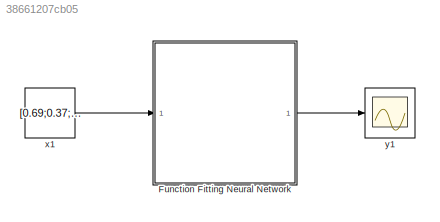
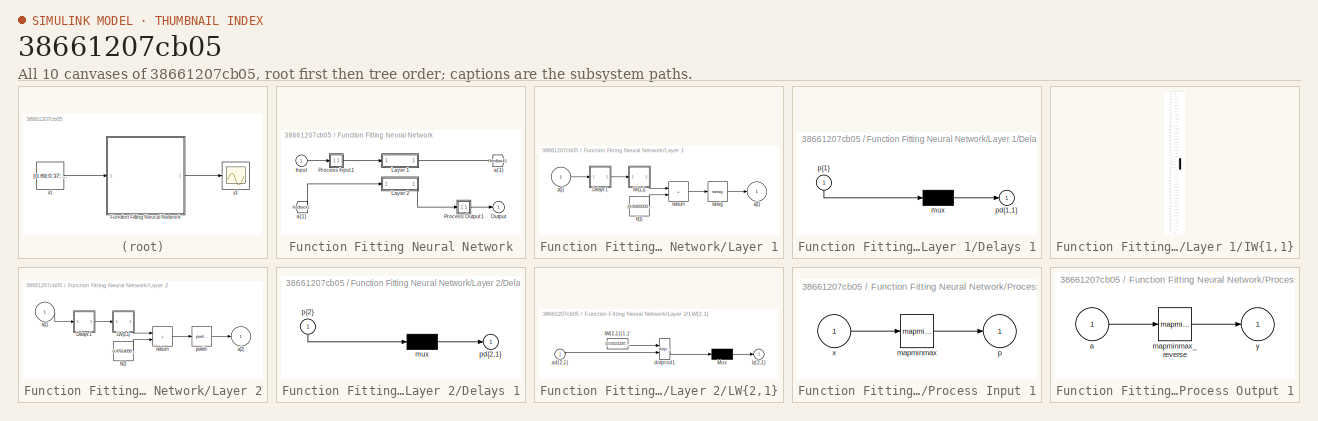
[diagram: thumbnail index - all 10 canvases of the model, root first then tree order]
MODEL slx_38661207cb05
KIND model
CONFIG AbsTol = auto
CONFIG EnableMultiTasking = off
CONFIG FixedStep = auto
CONFIG MaxStep = auto
CONFIG MinStep = auto
CONFIG RelTol = 1e-3
CONFIG SampleTimeConstraint = Unconstrained
CONFIG SolverName = VariableStepAuto
CONFIG StartTime = 0.0
CONFIG StopTime = 10.0
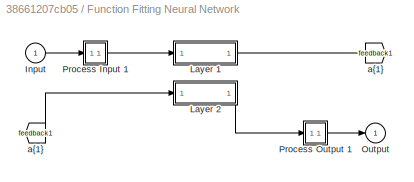
BLOCK [SubSystem] Function Fitting Neural Network
  Ports = [1, 1]
  RequestExecContextInheritance = off
BLOCK [From] Function Fitting Neural Network/ a{1} 
  GotoTag = feedback1
BLOCK [Inport] Function Fitting Neural Network/Input
  PortDimensions = 3
BLOCK [SubSystem] Function Fitting Neural Network/Layer 1
  Ports = [1, 1]
  RequestExecContextInheritance = off
BLOCK [SubSystem] Function Fitting Neural Network/Layer 1/Delays 1
  Ports = [1, 1]
  RequestExecContextInheritance = off
BLOCK [Mux] Function Fitting Neural Network/Layer 1/Delays 1/mux
  Inputs = 1
  Ports = [1, 1]
BLOCK [Outport] Function Fitting Neural Network/Layer 1/Delays 1/pd{1,1}
BLOCK [Inport] Function Fitting Neural Network/Layer 1/Delays 1/p{1}
  NameLocation = left
  PortDimensions = 3
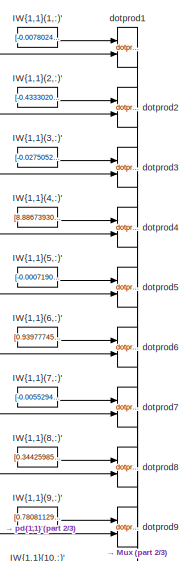
[diagram: Function Fitting Neural Network/Layer 1/IW{1,1} - part 1/3, top center region]
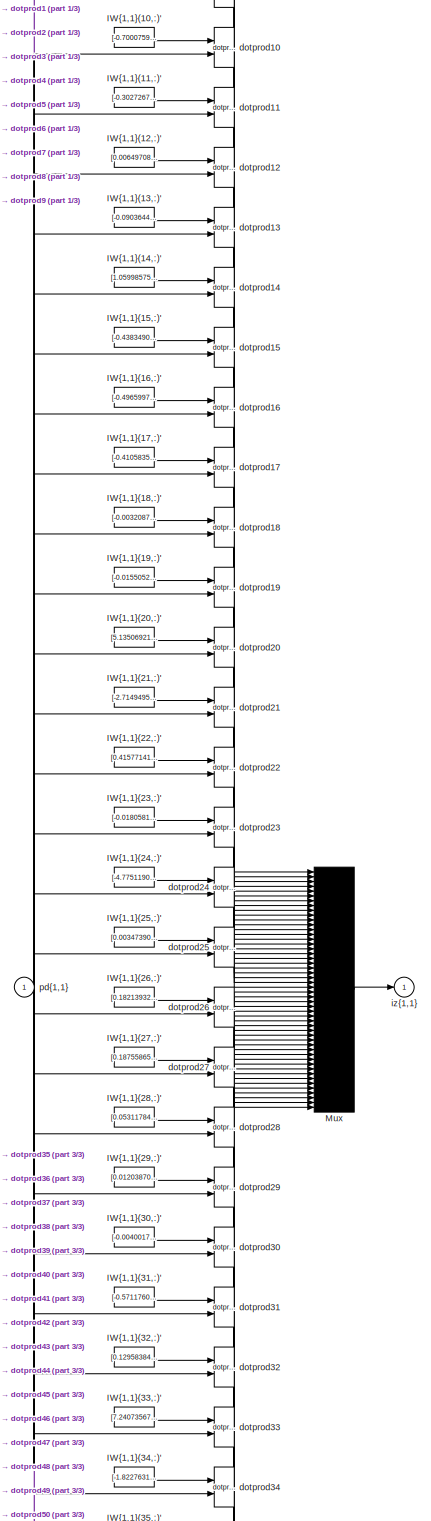
[diagram: Function Fitting Neural Network/Layer 1/IW{1,1} - part 2/3, full width, middle band]
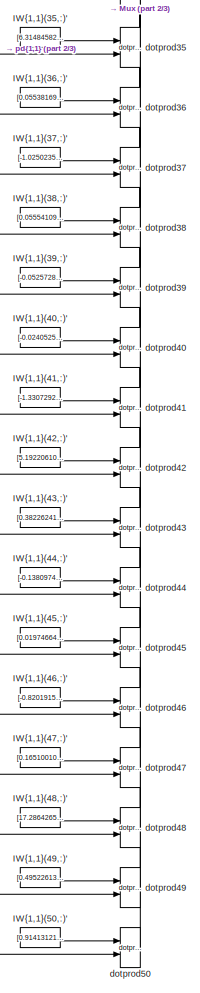
[diagram: Function Fitting Neural Network/Layer 1/IW{1,1} - part 3/3, bottom center region]
BLOCK [SubSystem] Function Fitting Neural Network/Layer 1/IW{1,1}
  Ports = [1, 1]
  RequestExecContextInheritance = off
BLOCK [Constant] Function Fitting Neural Network/Layer 1/IW{1,1}/IW{1,1}(1,:)'
  Value = [-0.007802490652693317395305339090327834128402173519134521484375;0.0245488003842538014820373604152337065897881984710693359375;0.030357218344098622908600049186134128831326961517333984375]
BLOCK [Constant] Function Fitting Neural Network/Layer 1/IW{1,1}/IW{1,1}(10,:)'
  Value = [-0.70007596098265556516793139962828718125820159912109375;-0.27517816440296394286946224383427761495113372802734375;-0.87526685457696007386374503767001442611217498779296875]
BLOCK [Constant] Function Fitting Neural Network/Layer 1/IW{1,1}/IW{1,1}(11,:)'
  Value = [-0.302726740620919254620702076863381080329418182373046875;0.38820127080102706518260902157635428011417388916015625;-0.563495157482501785040085451328195631504058837890625]
BLOCK [Constant] Function Fitting Neural Network/Layer 1/IW{1,1}/IW{1,1}(12,:)'
  Value = [0.00649708988217999328096396993714733980596065521240234375;0.07562323954399914616164579683754709549248218536376953125;0.060269514880412287938238335982532589696347713470458984375]
BLOCK [Constant] Function Fitting Neural Network/Layer 1/IW{1,1}/IW{1,1}(13,:)'
  Value = [-0.0903644362700245784569830220789299346506595611572265625;-5.73156867947949866248791295220144093036651611328125;0.2419626519431356814759936924019712023437023162841796875]
BLOCK [Constant] Function Fitting Neural Network/Layer 1/IW{1,1}/IW{1,1}(14,:)'
  Value = [1.0599857503351362009169633893179707229137420654296875;1.731402156017260995923834343557246029376983642578125;-0.280737149046726031098586418011109344661235809326171875]
BLOCK [Constant] Function Fitting Neural Network/Layer 1/IW{1,1}/IW{1,1}(15,:)'
  Value = [-0.43834908889503176876445422749384306371212005615234375;1.97740516995932313903949761879630386829376220703125;-0.77681071376094923408572867629118263721466064453125]
BLOCK [Constant] Function Fitting Neural Network/Layer 1/IW{1,1}/IW{1,1}(16,:)'
  Value = [-0.4965997558237857933960412992746569216251373291015625;-2.2679912529688550648643285967409610748291015625;-6.7659004497228973917799521586857736110687255859375]
BLOCK [Constant] Function Fitting Neural Network/Layer 1/IW{1,1}/IW{1,1}(17,:)'
  Value = [-0.410583577162490442891140673964400775730609893798828125;-6.5723941087989121712098494754172861576080322265625;-1.90809231326584782806321527459658682346343994140625]
BLOCK [Constant] Function Fitting Neural Network/Layer 1/IW{1,1}/IW{1,1}(18,:)'
  Value = [-0.003208703603492913010442055821158646722324192523956298828125;-0.04365470777054301920738765829810290597379207611083984375;-0.0367744935283312035512182092134025879204273223876953125]
BLOCK [Constant] Function Fitting Neural Network/Layer 1/IW{1,1}/IW{1,1}(19,:)'
  Value = [-0.01550521297797620261238460415142981219105422496795654296875;-0.06837119184355879009107326282901340164244174957275390625;-0.068231348505404632032167455690796487033367156982421875]
BLOCK [Constant] Function Fitting Neural Network/Layer 1/IW{1,1}/IW{1,1}(2,:)'
  Value = [-0.43330205083773842833494427395635284483432769775390625;0.66432607094815743220550530168111436069011688232421875;-0.800356101165105915384856416494585573673248291015625]
BLOCK [Constant] Function Fitting Neural Network/Layer 1/IW{1,1}/IW{1,1}(20,:)'
  Value = [5.13506921622871370658458545221947133541107177734375;-3.20345317283644970274281149613671004772186279296875;2.09269410825132951003979542292654514312744140625]
BLOCK [Constant] Function Fitting Neural Network/Layer 1/IW{1,1}/IW{1,1}(21,:)'
  Value = [-2.71494953536403382798880556947551667690277099609375;-4.97000132058151233849230266059748828411102294921875;9.5646730290126384943505399860441684722900390625]
BLOCK [Constant] Function Fitting Neural Network/Layer 1/IW{1,1}/IW{1,1}(22,:)'
  Value = [0.415771415182131398591280913024093024432659149169921875;0.50180532055194426721556055781547911465167999267578125;-0.1277926225266610427144797768050921149551868438720703125]
BLOCK [Constant] Function Fitting Neural Network/Layer 1/IW{1,1}/IW{1,1}(23,:)'
  Value = [-0.018058136369733544801530200629713363014161586761474609375;0.2069896189264482100345077242309344001114368438720703125;1.062580185369764951275328712654300034046173095703125]
BLOCK [Constant] Function Fitting Neural Network/Layer 1/IW{1,1}/IW{1,1}(24,:)'
  Value = [-4.77511909858266125894488141057081520557403564453125;2.81889025200707710183678500470705330371856689453125;1.2165693290018484429282352721202187240123748779296875]
BLOCK [Constant] Function Fitting Neural Network/Layer 1/IW{1,1}/IW{1,1}(25,:)'
  Value = [0.003473909140344732214555900640107211074791848659515380859375;-0.0167799781232297363919858668168672011233866214752197265625;-0.0184566344126673963221829666281337267719209194183349609375]
BLOCK [Constant] Function Fitting Neural Network/Layer 1/IW{1,1}/IW{1,1}(26,:)'
  Value = [0.1821393294547516139569864890290773473680019378662109375;1.8148913584532968545914854985312558710575103759765625;5.8144232223329250786036936915479600429534912109375]
BLOCK [Constant] Function Fitting Neural Network/Layer 1/IW{1,1}/IW{1,1}(27,:)'
  Value = [0.1875586523835815200289545146006275899708271026611328125;-0.108653105294960694582329097102046944200992584228515625;0.2410189362733214657463776120494003407657146453857421875]
BLOCK [Constant] Function Fitting Neural Network/Layer 1/IW{1,1}/IW{1,1}(28,:)'
  Value = [0.0531178467898652251211188968227361328899860382080078125;0.10075952009397261266432366255685337819159030914306640625;0.09146888142490446071963816621064324863255023956298828125]
BLOCK [Constant] Function Fitting Neural Network/Layer 1/IW{1,1}/IW{1,1}(29,:)'
  Value = [0.01203870065091178741256694451067232876084744930267333984375;0.05249320485636237154647432134879636578261852264404296875;0.06064760424355887524772157348706969060003757476806640625]
BLOCK [Constant] Function Fitting Neural Network/Layer 1/IW{1,1}/IW{1,1}(3,:)'
  Value = [-0.02750523969990399664187208372823079116642475128173828125;-0.08230091428998777269843145631966763176023960113525390625;-0.0463336302393278220979055959105608053505420684814453125]
BLOCK [Constant] Function Fitting Neural Network/Layer 1/IW{1,1}/IW{1,1}(30,:)'
  Value = [-0.004001702697109347887927111031558524700812995433807373046875;-0.0453289186408128708105635951142176054418087005615234375;0.06899957921791981252379599709456670098006725311279296875]
BLOCK [Constant] Function Fitting Neural Network/Layer 1/IW{1,1}/IW{1,1}(31,:)'
  Value = [-0.57117604476147632031057810308993794023990631103515625;-7.9951739619875610287635936401784420013427734375;-2.37229186227722177449095397605560719966888427734375]
BLOCK [Constant] Function Fitting Neural Network/Layer 1/IW{1,1}/IW{1,1}(32,:)'
  Value = [0.1295838419179179135110047127454890869557857513427734375;4.77841076055229496688525614445097744464874267578125;-0.5869683865087507168567526605329476296901702880859375]
BLOCK [Constant] Function Fitting Neural Network/Layer 1/IW{1,1}/IW{1,1}(33,:)'
  Value = [7.240735670974121518383981310762465000152587890625;3.418750659636040634126175064011476933956146240234375;3.442618235906760748576971309375949203968048095703125]
BLOCK [Constant] Function Fitting Neural Network/Layer 1/IW{1,1}/IW{1,1}(34,:)'
  Value = [-1.8227631366632703890928723922115750610828399658203125;-0.50354303058210436727648584565031342208385467529296875;-0.406474752311483999989150106557644903659820556640625]
BLOCK [Constant] Function Fitting Neural Network/Layer 1/IW{1,1}/IW{1,1}(35,:)'
  Value = [6.314845824161494647341896779835224151611328125;2.29056099143789904104551169439218938350677490234375;-2.195757603786627765174443993601016700267791748046875]
BLOCK [Constant] Function Fitting Neural Network/Layer 1/IW{1,1}/IW{1,1}(36,:)'
  Value = [0.05538169092708998542118337127249105833470821380615234375;0.11267711006360119074809489347899216227233409881591796875;0.0894014804725185296963019254690152592957019805908203125]
BLOCK [Constant] Function Fitting Neural Network/Layer 1/IW{1,1}/IW{1,1}(37,:)'
  Value = [-1.02502356350680035035338732996024191379547119140625;-0.422020951403098421028659004150540567934513092041015625;-0.424988717914301095124329776808735914528369903564453125]
BLOCK [Constant] Function Fitting Neural Network/Layer 1/IW{1,1}/IW{1,1}(38,:)'
  Value = [0.0555410978533395771616909541990025900304317474365234375;0.0752976033370312547443603534702560864388942718505859375;0.1035757513549229458238443157824804075062274932861328125]
BLOCK [Constant] Function Fitting Neural Network/Layer 1/IW{1,1}/IW{1,1}(39,:)'
  Value = [-0.05257287900157280036150808655293076299130916595458984375;2.84513727157140028367621198412962257862091064453125;1.0663524426634065633834325126372277736663818359375]
BLOCK [Constant] Function Fitting Neural Network/Layer 1/IW{1,1}/IW{1,1}(4,:)'
  Value = [8.886739301581801697693663300015032291412353515625;-0.52196123725755338984555464776349253952503204345703125;-3.586044978651317105544649166404269635677337646484375]
BLOCK [Constant] Function Fitting Neural Network/Layer 1/IW{1,1}/IW{1,1}(40,:)'
  Value = [-0.02405258392529431576978282691925414837896823883056640625;0.0180044168893227218841701642304542474448680877685546875;0.045973866256405086783143332240797462873160839080810546875]
BLOCK [Constant] Function Fitting Neural Network/Layer 1/IW{1,1}/IW{1,1}(41,:)'
  Value = [-1.33072925947881959274354812805540859699249267578125;-0.908615748291656810664562726742587983608245849609375;-0.043280679048366944849934867534102522768080234527587890625]
BLOCK [Constant] Function Fitting Neural Network/Layer 1/IW{1,1}/IW{1,1}(42,:)'
  Value = [5.19220610156417361480407635099254548549652099609375;-2.61554325724090830362911219708621501922607421875;-0.9090822896435073463550224914797581732273101806640625]
BLOCK [Constant] Function Fitting Neural Network/Layer 1/IW{1,1}/IW{1,1}(43,:)'
  Value = [0.3822624102999034878536122050718404352664947509765625;6.479299956860788967105690971948206424713134765625;1.823409866254550149022861660341732203960418701171875]
BLOCK [Constant] Function Fitting Neural Network/Layer 1/IW{1,1}/IW{1,1}(44,:)'
  Value = [-0.1380974912688738009958200336768641136586666107177734375;0.1869668184638409169640027585046482272446155548095703125;-0.82004388529707206156871279745246283710002899169921875]
BLOCK [Constant] Function Fitting Neural Network/Layer 1/IW{1,1}/IW{1,1}(45,:)'
  Value = [0.01974664882319367154028810773525037802755832672119140625;-0.00112559522827453280767462384659438612288795411586761474609375;-0.0128681378088175736584819475183394388295710086822509765625]
BLOCK [Constant] Function Fitting Neural Network/Layer 1/IW{1,1}/IW{1,1}(46,:)'
  Value = [-0.82019153301345915085818205625400878489017486572265625;-0.64025414941239311428233804690535180270671844482421875;1.754826012589809192121492742444388568401336669921875]
BLOCK [Constant] Function Fitting Neural Network/Layer 1/IW{1,1}/IW{1,1}(47,:)'
  Value = [0.1651001000818258235280922008314519189298152923583984375;0.079318327500708052379962964550941251218318939208984375;0.1805968932791880698918163261623703874647617340087890625]
BLOCK [Constant] Function Fitting Neural Network/Layer 1/IW{1,1}/IW{1,1}(48,:)'
  Value = [17.286426501963351398671875358559191226959228515625;-0.8136195117715525615409433157765306532382965087890625;0.077944525769799322123532192563288845121860504150390625]
BLOCK [Constant] Function Fitting Neural Network/Layer 1/IW{1,1}/IW{1,1}(49,:)'
  Value = [0.49522613662617487317874065411160700023174285888671875;-0.573902306624953784108811305486597120761871337890625;-3.981303720348468022649512931820936501026153564453125]
BLOCK [Constant] Function Fitting Neural Network/Layer 1/IW{1,1}/IW{1,1}(5,:)'
  Value = [-0.000719042008973189085592470082275440290686674416065216064453125;-0.03689982917092581027329600829034461639821529388427734375;-0.03437511404779068635573224810286774300038814544677734375]
BLOCK [Constant] Function Fitting Neural Network/Layer 1/IW{1,1}/IW{1,1}(50,:)'
  Value = [0.91413121054785551056198755759396590292453765869140625;1.9045356315740111785572707958635874092578887939453125;-0.0028836996633447536768357633008008633623830974102020263671875]
BLOCK [Constant] Function Fitting Neural Network/Layer 1/IW{1,1}/IW{1,1}(6,:)'
  Value = [0.93977745604699458592534710987820290029048919677734375;0.159746646883351051116051166900433599948883056640625;-3.397698842639774508000982677913270890712738037109375]
BLOCK [Constant] Function Fitting Neural Network/Layer 1/IW{1,1}/IW{1,1}(7,:)'
  Value = [-0.00552943147538018618669664050457868142984807491302490234375;0.01070047824962312536800634887868000078015029430389404296875;0.0158101044343360308541690528727485798299312591552734375]
BLOCK [Constant] Function Fitting Neural Network/Layer 1/IW{1,1}/IW{1,1}(8,:)'
  Value = [0.344259857556870330075327046870370395481586456298828125;0.057499336311618860773098305116945994086563587188720703125;0.426564706926471526315935989259742200374603271484375]
BLOCK [Constant] Function Fitting Neural Network/Layer 1/IW{1,1}/IW{1,1}(9,:)'
  Value = [0.78081129777451752094208359267213381826877593994140625;-0.51466408692734877394769910097238607704639434814453125;1.2880000492127277045284472478670068085193634033203125]
BLOCK [Mux] Function Fitting Neural Network/Layer 1/IW{1,1}/Mux
  Inputs = 50
  Ports = [50, 1]
BLOCK [Reference] Function Fitting Neural Network/Layer 1/IW{1,1}/dotprod1  REF=neural/Weight Functions/dotprod
  Ports = [2, 1]
  SourceBlock = neural/Weight Functions/dotprod
  SourceProductBaseCode = NN
  SourceType = DOTPROD
BLOCK [Reference] Function Fitting Neural Network/Layer 1/IW{1,1}/dotprod10  REF=neural/Weight Functions/dotprod
  Ports = [2, 1]
  SourceBlock = neural/Weight Functions/dotprod
  SourceProductBaseCode = NN
  SourceType = DOTPROD
BLOCK [Reference] Function Fitting Neural Network/Layer 1/IW{1,1}/dotprod11  REF=neural/Weight Functions/dotprod
  Ports = [2, 1]
  SourceBlock = neural/Weight Functions/dotprod
  SourceProductBaseCode = NN
  SourceType = DOTPROD
BLOCK [Reference] Function Fitting Neural Network/Layer 1/IW{1,1}/dotprod12  REF=neural/Weight Functions/dotprod
  Ports = [2, 1]
  SourceBlock = neural/Weight Functions/dotprod
  SourceProductBaseCode = NN
  SourceType = DOTPROD
BLOCK [Reference] Function Fitting Neural Network/Layer 1/IW{1,1}/dotprod13  REF=neural/Weight Functions/dotprod
  Ports = [2, 1]
  SourceBlock = neural/Weight Functions/dotprod
  SourceProductBaseCode = NN
  SourceType = DOTPROD
BLOCK [Reference] Function Fitting Neural Network/Layer 1/IW{1,1}/dotprod14  REF=neural/Weight Functions/dotprod
  Ports = [2, 1]
  SourceBlock = neural/Weight Functions/dotprod
  SourceProductBaseCode = NN
  SourceType = DOTPROD
BLOCK [Reference] Function Fitting Neural Network/Layer 1/IW{1,1}/dotprod15  REF=neural/Weight Functions/dotprod
  Ports = [2, 1]
  SourceBlock = neural/Weight Functions/dotprod
  SourceProductBaseCode = NN
  SourceType = DOTPROD
BLOCK [Reference] Function Fitting Neural Network/Layer 1/IW{1,1}/dotprod16  REF=neural/Weight Functions/dotprod
  Ports = [2, 1]
  SourceBlock = neural/Weight Functions/dotprod
  SourceProductBaseCode = NN
  SourceType = DOTPROD
BLOCK [Reference] Function Fitting Neural Network/Layer 1/IW{1,1}/dotprod17  REF=neural/Weight Functions/dotprod
  Ports = [2, 1]
  SourceBlock = neural/Weight Functions/dotprod
  SourceProductBaseCode = NN
  SourceType = DOTPROD
BLOCK [Reference] Function Fitting Neural Network/Layer 1/IW{1,1}/dotprod18  REF=neural/Weight Functions/dotprod
  Ports = [2, 1]
  SourceBlock = neural/Weight Functions/dotprod
  SourceProductBaseCode = NN
  SourceType = DOTPROD
BLOCK [Reference] Function Fitting Neural Network/Layer 1/IW{1,1}/dotprod19  REF=neural/Weight Functions/dotprod
  Ports = [2, 1]
  SourceBlock = neural/Weight Functions/dotprod
  SourceProductBaseCode = NN
  SourceType = DOTPROD
BLOCK [Reference] Function Fitting Neural Network/Layer 1/IW{1,1}/dotprod2  REF=neural/Weight Functions/dotprod
  Ports = [2, 1]
  SourceBlock = neural/Weight Functions/dotprod
  SourceProductBaseCode = NN
  SourceType = DOTPROD
BLOCK [Reference] Function Fitting Neural Network/Layer 1/IW{1,1}/dotprod20  REF=neural/Weight Functions/dotprod
  Ports = [2, 1]
  SourceBlock = neural/Weight Functions/dotprod
  SourceProductBaseCode = NN
  SourceType = DOTPROD
BLOCK [Reference] Function Fitting Neural Network/Layer 1/IW{1,1}/dotprod21  REF=neural/Weight Functions/dotprod
  Ports = [2, 1]
  SourceBlock = neural/Weight Functions/dotprod
  SourceProductBaseCode = NN
  SourceType = DOTPROD
BLOCK [Reference] Function Fitting Neural Network/Layer 1/IW{1,1}/dotprod22  REF=neural/Weight Functions/dotprod
  Ports = [2, 1]
  SourceBlock = neural/Weight Functions/dotprod
  SourceProductBaseCode = NN
  SourceType = DOTPROD
BLOCK [Reference] Function Fitting Neural Network/Layer 1/IW{1,1}/dotprod23  REF=neural/Weight Functions/dotprod
  Ports = [2, 1]
  SourceBlock = neural/Weight Functions/dotprod
  SourceProductBaseCode = NN
  SourceType = DOTPROD
BLOCK [Reference] Function Fitting Neural Network/Layer 1/IW{1,1}/dotprod24  REF=neural/Weight Functions/dotprod
  Ports = [2, 1]
  SourceBlock = neural/Weight Functions/dotprod
  SourceProductBaseCode = NN
  SourceType = DOTPROD
BLOCK [Reference] Function Fitting Neural Network/Layer 1/IW{1,1}/dotprod25  REF=neural/Weight Functions/dotprod
  Ports = [2, 1]
  SourceBlock = neural/Weight Functions/dotprod
  SourceProductBaseCode = NN
  SourceType = DOTPROD
BLOCK [Reference] Function Fitting Neural Network/Layer 1/IW{1,1}/dotprod26  REF=neural/Weight Functions/dotprod
  Ports = [2, 1]
  SourceBlock = neural/Weight Functions/dotprod
  SourceProductBaseCode = NN
  SourceType = DOTPROD
BLOCK [Reference] Function Fitting Neural Network/Layer 1/IW{1,1}/dotprod27  REF=neural/Weight Functions/dotprod
  Ports = [2, 1]
  SourceBlock = neural/Weight Functions/dotprod
  SourceProductBaseCode = NN
  SourceType = DOTPROD
BLOCK [Reference] Function Fitting Neural Network/Layer 1/IW{1,1}/dotprod28  REF=neural/Weight Functions/dotprod
  Ports = [2, 1]
  SourceBlock = neural/Weight Functions/dotprod
  SourceProductBaseCode = NN
  SourceType = DOTPROD
BLOCK [Reference] Function Fitting Neural Network/Layer 1/IW{1,1}/dotprod29  REF=neural/Weight Functions/dotprod
  Ports = [2, 1]
  SourceBlock = neural/Weight Functions/dotprod
  SourceProductBaseCode = NN
  SourceType = DOTPROD
BLOCK [Reference] Function Fitting Neural Network/Layer 1/IW{1,1}/dotprod3  REF=neural/Weight Functions/dotprod
  Ports = [2, 1]
  SourceBlock = neural/Weight Functions/dotprod
  SourceProductBaseCode = NN
  SourceType = DOTPROD
BLOCK [Reference] Function Fitting Neural Network/Layer 1/IW{1,1}/dotprod30  REF=neural/Weight Functions/dotprod
  Ports = [2, 1]
  SourceBlock = neural/Weight Functions/dotprod
  SourceProductBaseCode = NN
  SourceType = DOTPROD
BLOCK [Reference] Function Fitting Neural Network/Layer 1/IW{1,1}/dotprod31  REF=neural/Weight Functions/dotprod
  Ports = [2, 1]
  SourceBlock = neural/Weight Functions/dotprod
  SourceProductBaseCode = NN
  SourceType = DOTPROD
BLOCK [Reference] Function Fitting Neural Network/Layer 1/IW{1,1}/dotprod32  REF=neural/Weight Functions/dotprod
  Ports = [2, 1]
  SourceBlock = neural/Weight Functions/dotprod
  SourceProductBaseCode = NN
  SourceType = DOTPROD
BLOCK [Reference] Function Fitting Neural Network/Layer 1/IW{1,1}/dotprod33  REF=neural/Weight Functions/dotprod
  Ports = [2, 1]
  SourceBlock = neural/Weight Functions/dotprod
  SourceProductBaseCode = NN
  SourceType = DOTPROD
BLOCK [Reference] Function Fitting Neural Network/Layer 1/IW{1,1}/dotprod34  REF=neural/Weight Functions/dotprod
  Ports = [2, 1]
  SourceBlock = neural/Weight Functions/dotprod
  SourceProductBaseCode = NN
  SourceType = DOTPROD
BLOCK [Reference] Function Fitting Neural Network/Layer 1/IW{1,1}/dotprod35  REF=neural/Weight Functions/dotprod
  Ports = [2, 1]
  SourceBlock = neural/Weight Functions/dotprod
  SourceProductBaseCode = NN
  SourceType = DOTPROD
BLOCK [Reference] Function Fitting Neural Network/Layer 1/IW{1,1}/dotprod36  REF=neural/Weight Functions/dotprod
  Ports = [2, 1]
  SourceBlock = neural/Weight Functions/dotprod
  SourceProductBaseCode = NN
  SourceType = DOTPROD
BLOCK [Reference] Function Fitting Neural Network/Layer 1/IW{1,1}/dotprod37  REF=neural/Weight Functions/dotprod
  Ports = [2, 1]
  SourceBlock = neural/Weight Functions/dotprod
  SourceProductBaseCode = NN
  SourceType = DOTPROD
BLOCK [Reference] Function Fitting Neural Network/Layer 1/IW{1,1}/dotprod38  REF=neural/Weight Functions/dotprod
  Ports = [2, 1]
  SourceBlock = neural/Weight Functions/dotprod
  SourceProductBaseCode = NN
  SourceType = DOTPROD
BLOCK [Reference] Function Fitting Neural Network/Layer 1/IW{1,1}/dotprod39  REF=neural/Weight Functions/dotprod
  Ports = [2, 1]
  SourceBlock = neural/Weight Functions/dotprod
  SourceProductBaseCode = NN
  SourceType = DOTPROD
BLOCK [Reference] Function Fitting Neural Network/Layer 1/IW{1,1}/dotprod4  REF=neural/Weight Functions/dotprod
  Ports = [2, 1]
  SourceBlock = neural/Weight Functions/dotprod
  SourceProductBaseCode = NN
  SourceType = DOTPROD
BLOCK [Reference] Function Fitting Neural Network/Layer 1/IW{1,1}/dotprod40  REF=neural/Weight Functions/dotprod
  Ports = [2, 1]
  SourceBlock = neural/Weight Functions/dotprod
  SourceProductBaseCode = NN
  SourceType = DOTPROD
BLOCK [Reference] Function Fitting Neural Network/Layer 1/IW{1,1}/dotprod41  REF=neural/Weight Functions/dotprod
  Ports = [2, 1]
  SourceBlock = neural/Weight Functions/dotprod
  SourceProductBaseCode = NN
  SourceType = DOTPROD
BLOCK [Reference] Function Fitting Neural Network/Layer 1/IW{1,1}/dotprod42  REF=neural/Weight Functions/dotprod
  Ports = [2, 1]
  SourceBlock = neural/Weight Functions/dotprod
  SourceProductBaseCode = NN
  SourceType = DOTPROD
BLOCK [Reference] Function Fitting Neural Network/Layer 1/IW{1,1}/dotprod43  REF=neural/Weight Functions/dotprod
  Ports = [2, 1]
  SourceBlock = neural/Weight Functions/dotprod
  SourceProductBaseCode = NN
  SourceType = DOTPROD
BLOCK [Reference] Function Fitting Neural Network/Layer 1/IW{1,1}/dotprod44  REF=neural/Weight Functions/dotprod
  Ports = [2, 1]
  SourceBlock = neural/Weight Functions/dotprod
  SourceProductBaseCode = NN
  SourceType = DOTPROD
BLOCK [Reference] Function Fitting Neural Network/Layer 1/IW{1,1}/dotprod45  REF=neural/Weight Functions/dotprod
  Ports = [2, 1]
  SourceBlock = neural/Weight Functions/dotprod
  SourceProductBaseCode = NN
  SourceType = DOTPROD
BLOCK [Reference] Function Fitting Neural Network/Layer 1/IW{1,1}/dotprod46  REF=neural/Weight Functions/dotprod
  Ports = [2, 1]
  SourceBlock = neural/Weight Functions/dotprod
  SourceProductBaseCode = NN
  SourceType = DOTPROD
BLOCK [Reference] Function Fitting Neural Network/Layer 1/IW{1,1}/dotprod47  REF=neural/Weight Functions/dotprod
  Ports = [2, 1]
  SourceBlock = neural/Weight Functions/dotprod
  SourceProductBaseCode = NN
  SourceType = DOTPROD
BLOCK [Reference] Function Fitting Neural Network/Layer 1/IW{1,1}/dotprod48  REF=neural/Weight Functions/dotprod
  Ports = [2, 1]
  SourceBlock = neural/Weight Functions/dotprod
  SourceProductBaseCode = NN
  SourceType = DOTPROD
BLOCK [Reference] Function Fitting Neural Network/Layer 1/IW{1,1}/dotprod49  REF=neural/Weight Functions/dotprod
  Ports = [2, 1]
  SourceBlock = neural/Weight Functions/dotprod
  SourceProductBaseCode = NN
  SourceType = DOTPROD
BLOCK [Reference] Function Fitting Neural Network/Layer 1/IW{1,1}/dotprod5  REF=neural/Weight Functions/dotprod
  Ports = [2, 1]
  SourceBlock = neural/Weight Functions/dotprod
  SourceProductBaseCode = NN
  SourceType = DOTPROD
BLOCK [Reference] Function Fitting Neural Network/Layer 1/IW{1,1}/dotprod50  REF=neural/Weight Functions/dotprod
  Ports = [2, 1]
  SourceBlock = neural/Weight Functions/dotprod
  SourceProductBaseCode = NN
  SourceType = DOTPROD
BLOCK [Reference] Function Fitting Neural Network/Layer 1/IW{1,1}/dotprod6  REF=neural/Weight Functions/dotprod
  Ports = [2, 1]
  SourceBlock = neural/Weight Functions/dotprod
  SourceProductBaseCode = NN
  SourceType = DOTPROD
BLOCK [Reference] Function Fitting Neural Network/Layer 1/IW{1,1}/dotprod7  REF=neural/Weight Functions/dotprod
  Ports = [2, 1]
  SourceBlock = neural/Weight Functions/dotprod
  SourceProductBaseCode = NN
  SourceType = DOTPROD
BLOCK [Reference] Function Fitting Neural Network/Layer 1/IW{1,1}/dotprod8  REF=neural/Weight Functions/dotprod
  Ports = [2, 1]
  SourceBlock = neural/Weight Functions/dotprod
  SourceProductBaseCode = NN
  SourceType = DOTPROD
BLOCK [Reference] Function Fitting Neural Network/Layer 1/IW{1,1}/dotprod9  REF=neural/Weight Functions/dotprod
  Ports = [2, 1]
  SourceBlock = neural/Weight Functions/dotprod
  SourceProductBaseCode = NN
  SourceType = DOTPROD
BLOCK [Outport] Function Fitting Neural Network/Layer 1/IW{1,1}/iz{1,1}
BLOCK [Inport] Function Fitting Neural Network/Layer 1/IW{1,1}/pd{1,1}
  PortDimensions = 3
BLOCK [Outport] Function Fitting Neural Network/Layer 1/a{1}
  InitialOutput = [0;0;0;0;0;0;0;0;0;0;0;0;0;0;0;0;0;0;0;0;0;0;0;0;0;0;0;0;0;0;0;0;0;0;0;0;0;0;0;0;0;0;0;0;0;0;0;0;0;0]
BLOCK [Constant] Function Fitting Neural Network/Layer 1/b{1}
  Value = [0.0160303394414940646173217686509815393947064876556396484375;0.9362317116184104559550860358285717666149139404296875;0.025650908390924272162170183264606748707592487335205078125;0.7483227937497167747693538331077434122562408447265625;0.00207214091261132514476539512315866886638104915618896484375;-0.53462680867430145692509313448681496083736419677734375;0.01116701925462889287421486272933179861865937709...<+2490ch>
BLOCK [Sum] Function Fitting Neural Network/Layer 1/netsum
  IconShape = rectangular
  InputSameDT = on
  Inputs = 2
  OutDataTypeStr = Inherit: Same as first input
  Ports = [2, 1]
  SaturateOnIntegerOverflow = on
BLOCK [Inport] Function Fitting Neural Network/Layer 1/p{1}
  PortDimensions = 3
BLOCK [Reference] Function Fitting Neural Network/Layer 1/tansig  REF=neural/Transfer Functions/tansig
  Ports = [1, 1]
  SourceBlock = neural/Transfer Functions/tansig
  SourceProductBaseCode = NN
  SourceType = TANSIG
BLOCK [SubSystem] Function Fitting Neural Network/Layer 2
  Ports = [1, 1]
  RequestExecContextInheritance = off
BLOCK [SubSystem] Function Fitting Neural Network/Layer 2/Delays 1
  Ports = [1, 1]
  RequestExecContextInheritance = off
BLOCK [Mux] Function Fitting Neural Network/Layer 2/Delays 1/mux
  Inputs = 1
  Ports = [1, 1]
BLOCK [Outport] Function Fitting Neural Network/Layer 2/Delays 1/pd{2,1}
BLOCK [Inport] Function Fitting Neural Network/Layer 2/Delays 1/p{2}
  NameLocation = left
  PortDimensions = 50
BLOCK [SubSystem] Function Fitting Neural Network/Layer 2/LW{2,1}
  Ports = [1, 1]
  RequestExecContextInheritance = off
BLOCK [Constant] Function Fitting Neural Network/Layer 2/LW{2,1}/IW{2,1}(1,:)'
  Value = [0.0310149739781787718573280443479234236292541027069091796875;-0.7282140724239483109414550199289806187152862548828125;-0.09835210260311606778049764443494495935738086700439453125;-0.032828508309874215864709867673809640109539031982421875;-0.047480391102315978868464441120522678829729557037353515625;0.1431674278844967951318523091686074621975421905517578125;0.0137703448365299723626931083231283992063254...<+2454ch>
BLOCK [Mux] Function Fitting Neural Network/Layer 2/LW{2,1}/Mux
  Inputs = 1
  Ports = [1, 1]
BLOCK [Inport] Function Fitting Neural Network/Layer 2/LW{2,1}/ad{2,1}
  PortDimensions = 50
BLOCK [Reference] Function Fitting Neural Network/Layer 2/LW{2,1}/dotprod1  REF=neural/Weight Functions/dotprod
  Ports = [2, 1]
  SourceBlock = neural/Weight Functions/dotprod
  SourceProductBaseCode = NN
  SourceType = DOTPROD
BLOCK [Outport] Function Fitting Neural Network/Layer 2/LW{2,1}/lz{2,1}
BLOCK [Inport] Function Fitting Neural Network/Layer 2/a{1} 
  PortDimensions = 50
BLOCK [Outport] Function Fitting Neural Network/Layer 2/a{2}
  InitialOutput = 0
BLOCK [Constant] Function Fitting Neural Network/Layer 2/b{2}
  Value = -0.476140991721615114418142411523149348795413970947265625
BLOCK [Sum] Function Fitting Neural Network/Layer 2/netsum
  IconShape = rectangular
  InputSameDT = on
  Inputs = 2
  OutDataTypeStr = Inherit: Same as first input
  Ports = [2, 1]
  SaturateOnIntegerOverflow = on
BLOCK [Reference] Function Fitting Neural Network/Layer 2/purelin  REF=neural/Transfer Functions/purelin
  Ports = [1, 1]
  SourceBlock = neural/Transfer Functions/purelin
  SourceProductBaseCode = NN
  SourceType = PURELIN
BLOCK [Outport] Function Fitting Neural Network/Output
  InitialOutput = 0
BLOCK [SubSystem] Function Fitting Neural Network/Process Input 1
  Ports = [1, 1]
  RequestExecContextInheritance = off
BLOCK [Reference] Function Fitting Neural Network/Process Input 1/mapminmax  REF=neural/Processing Functions/mapminmax
  Ports = [1, 1]
  SourceBlock = neural/Processing Functions/mapminmax
  SourceProductBaseCode = NN
  SourceType = MAPMINMAX Preprocess
BLOCK [Outport] Function Fitting Neural Network/Process Input 1/p
  PortDimensions = 3
BLOCK [Inport] Function Fitting Neural Network/Process Input 1/x
  PortDimensions = 3
BLOCK [SubSystem] Function Fitting Neural Network/Process Output 1
  Ports = [1, 1]
  RequestExecContextInheritance = off
BLOCK [Inport] Function Fitting Neural Network/Process Output 1/a
  PortDimensions = 1
BLOCK [Reference] Function Fitting Neural Network/Process Output 1/mapminmax_reverse  REF=neural/Processing Functions/mapminmax_reverse
  Ports = [1, 1]
  SourceBlock = neural/Processing Functions/mapminmax_reverse
  SourceProductBaseCode = NN
  SourceType = MAPMINMAX Reverse Process
BLOCK [Outport] Function Fitting Neural Network/Process Output 1/y
  PortDimensions = 1
BLOCK [Goto] Function Fitting Neural Network/a{1}
  GotoTag = feedback1
BLOCK [Constant] x1
  SampleTime = 1
  Value = [0.69;0.37;0.71]
BLOCK [Scope] y1
  Floating = off
  NumInputPorts = 1
  Ports = [1]
LINE Function Fitting Neural Network/ a{1} :1 -> Function Fitting Neural Network/Layer 2:1
LINE Function Fitting Neural Network/Input:1 -> Function Fitting Neural Network/Process Input 1:1
LINE Function Fitting Neural Network/Layer 1/Delays 1/mux:1 -> Function Fitting Neural Network/Layer 1/Delays 1/pd{1,1}:1
LINE Function Fitting Neural Network/Layer 1/Delays 1/p{1}:1 -> Function Fitting Neural Network/Layer 1/Delays 1/mux:1
LINE Function Fitting Neural Network/Layer 1/Delays 1:1 -> Function Fitting Neural Network/Layer 1/IW{1,1}:1
LINE Function Fitting Neural Network/Layer 1/IW{1,1}/IW{1,1}(1,:)':1 -> Function Fitting Neural Network/Layer 1/IW{1,1}/dotprod1:1
LINE Function Fitting Neural Network/Layer 1/IW{1,1}/IW{1,1}(10,:)':1 -> Function Fitting Neural Network/Layer 1/IW{1,1}/dotprod10:1
LINE Function Fitting Neural Network/Layer 1/IW{1,1}/IW{1,1}(11,:)':1 -> Function Fitting Neural Network/Layer 1/IW{1,1}/dotprod11:1
LINE Function Fitting Neural Network/Layer 1/IW{1,1}/IW{1,1}(12,:)':1 -> Function Fitting Neural Network/Layer 1/IW{1,1}/dotprod12:1
LINE Function Fitting Neural Network/Layer 1/IW{1,1}/IW{1,1}(13,:)':1 -> Function Fitting Neural Network/Layer 1/IW{1,1}/dotprod13:1
LINE Function Fitting Neural Network/Layer 1/IW{1,1}/IW{1,1}(14,:)':1 -> Function Fitting Neural Network/Layer 1/IW{1,1}/dotprod14:1
LINE Function Fitting Neural Network/Layer 1/IW{1,1}/IW{1,1}(15,:)':1 -> Function Fitting Neural Network/Layer 1/IW{1,1}/dotprod15:1
LINE Function Fitting Neural Network/Layer 1/IW{1,1}/IW{1,1}(16,:)':1 -> Function Fitting Neural Network/Layer 1/IW{1,1}/dotprod16:1
LINE Function Fitting Neural Network/Layer 1/IW{1,1}/IW{1,1}(17,:)':1 -> Function Fitting Neural Network/Layer 1/IW{1,1}/dotprod17:1
LINE Function Fitting Neural Network/Layer 1/IW{1,1}/IW{1,1}(18,:)':1 -> Function Fitting Neural Network/Layer 1/IW{1,1}/dotprod18:1
LINE Function Fitting Neural Network/Layer 1/IW{1,1}/IW{1,1}(19,:)':1 -> Function Fitting Neural Network/Layer 1/IW{1,1}/dotprod19:1
LINE Function Fitting Neural Network/Layer 1/IW{1,1}/IW{1,1}(2,:)':1 -> Function Fitting Neural Network/Layer 1/IW{1,1}/dotprod2:1
LINE Function Fitting Neural Network/Layer 1/IW{1,1}/IW{1,1}(20,:)':1 -> Function Fitting Neural Network/Layer 1/IW{1,1}/dotprod20:1
LINE Function Fitting Neural Network/Layer 1/IW{1,1}/IW{1,1}(21,:)':1 -> Function Fitting Neural Network/Layer 1/IW{1,1}/dotprod21:1
LINE Function Fitting Neural Network/Layer 1/IW{1,1}/IW{1,1}(22,:)':1 -> Function Fitting Neural Network/Layer 1/IW{1,1}/dotprod22:1
LINE Function Fitting Neural Network/Layer 1/IW{1,1}/IW{1,1}(23,:)':1 -> Function Fitting Neural Network/Layer 1/IW{1,1}/dotprod23:1
LINE Function Fitting Neural Network/Layer 1/IW{1,1}/IW{1,1}(24,:)':1 -> Function Fitting Neural Network/Layer 1/IW{1,1}/dotprod24:1
LINE Function Fitting Neural Network/Layer 1/IW{1,1}/IW{1,1}(25,:)':1 -> Function Fitting Neural Network/Layer 1/IW{1,1}/dotprod25:1
LINE Function Fitting Neural Network/Layer 1/IW{1,1}/IW{1,1}(26,:)':1 -> Function Fitting Neural Network/Layer 1/IW{1,1}/dotprod26:1
LINE Function Fitting Neural Network/Layer 1/IW{1,1}/IW{1,1}(27,:)':1 -> Function Fitting Neural Network/Layer 1/IW{1,1}/dotprod27:1
LINE Function Fitting Neural Network/Layer 1/IW{1,1}/IW{1,1}(28,:)':1 -> Function Fitting Neural Network/Layer 1/IW{1,1}/dotprod28:1
LINE Function Fitting Neural Network/Layer 1/IW{1,1}/IW{1,1}(29,:)':1 -> Function Fitting Neural Network/Layer 1/IW{1,1}/dotprod29:1
LINE Function Fitting Neural Network/Layer 1/IW{1,1}/IW{1,1}(3,:)':1 -> Function Fitting Neural Network/Layer 1/IW{1,1}/dotprod3:1
LINE Function Fitting Neural Network/Layer 1/IW{1,1}/IW{1,1}(30,:)':1 -> Function Fitting Neural Network/Layer 1/IW{1,1}/dotprod30:1
LINE Function Fitting Neural Network/Layer 1/IW{1,1}/IW{1,1}(31,:)':1 -> Function Fitting Neural Network/Layer 1/IW{1,1}/dotprod31:1
LINE Function Fitting Neural Network/Layer 1/IW{1,1}/IW{1,1}(32,:)':1 -> Function Fitting Neural Network/Layer 1/IW{1,1}/dotprod32:1
LINE Function Fitting Neural Network/Layer 1/IW{1,1}/IW{1,1}(33,:)':1 -> Function Fitting Neural Network/Layer 1/IW{1,1}/dotprod33:1
LINE Function Fitting Neural Network/Layer 1/IW{1,1}/IW{1,1}(34,:)':1 -> Function Fitting Neural Network/Layer 1/IW{1,1}/dotprod34:1
LINE Function Fitting Neural Network/Layer 1/IW{1,1}/IW{1,1}(35,:)':1 -> Function Fitting Neural Network/Layer 1/IW{1,1}/dotprod35:1
LINE Function Fitting Neural Network/Layer 1/IW{1,1}/IW{1,1}(36,:)':1 -> Function Fitting Neural Network/Layer 1/IW{1,1}/dotprod36:1
LINE Function Fitting Neural Network/Layer 1/IW{1,1}/IW{1,1}(37,:)':1 -> Function Fitting Neural Network/Layer 1/IW{1,1}/dotprod37:1
LINE Function Fitting Neural Network/Layer 1/IW{1,1}/IW{1,1}(38,:)':1 -> Function Fitting Neural Network/Layer 1/IW{1,1}/dotprod38:1
LINE Function Fitting Neural Network/Layer 1/IW{1,1}/IW{1,1}(39,:)':1 -> Function Fitting Neural Network/Layer 1/IW{1,1}/dotprod39:1
LINE Function Fitting Neural Network/Layer 1/IW{1,1}/IW{1,1}(4,:)':1 -> Function Fitting Neural Network/Layer 1/IW{1,1}/dotprod4:1
LINE Function Fitting Neural Network/Layer 1/IW{1,1}/IW{1,1}(40,:)':1 -> Function Fitting Neural Network/Layer 1/IW{1,1}/dotprod40:1
LINE Function Fitting Neural Network/Layer 1/IW{1,1}/IW{1,1}(41,:)':1 -> Function Fitting Neural Network/Layer 1/IW{1,1}/dotprod41:1
LINE Function Fitting Neural Network/Layer 1/IW{1,1}/IW{1,1}(42,:)':1 -> Function Fitting Neural Network/Layer 1/IW{1,1}/dotprod42:1
LINE Function Fitting Neural Network/Layer 1/IW{1,1}/IW{1,1}(43,:)':1 -> Function Fitting Neural Network/Layer 1/IW{1,1}/dotprod43:1
LINE Function Fitting Neural Network/Layer 1/IW{1,1}/IW{1,1}(44,:)':1 -> Function Fitting Neural Network/Layer 1/IW{1,1}/dotprod44:1
LINE Function Fitting Neural Network/Layer 1/IW{1,1}/IW{1,1}(45,:)':1 -> Function Fitting Neural Network/Layer 1/IW{1,1}/dotprod45:1
LINE Function Fitting Neural Network/Layer 1/IW{1,1}/IW{1,1}(46,:)':1 -> Function Fitting Neural Network/Layer 1/IW{1,1}/dotprod46:1
LINE Function Fitting Neural Network/Layer 1/IW{1,1}/IW{1,1}(47,:)':1 -> Function Fitting Neural Network/Layer 1/IW{1,1}/dotprod47:1
LINE Function Fitting Neural Network/Layer 1/IW{1,1}/IW{1,1}(48,:)':1 -> Function Fitting Neural Network/Layer 1/IW{1,1}/dotprod48:1
LINE Function Fitting Neural Network/Layer 1/IW{1,1}/IW{1,1}(49,:)':1 -> Function Fitting Neural Network/Layer 1/IW{1,1}/dotprod49:1
LINE Function Fitting Neural Network/Layer 1/IW{1,1}/IW{1,1}(5,:)':1 -> Function Fitting Neural Network/Layer 1/IW{1,1}/dotprod5:1
LINE Function Fitting Neural Network/Layer 1/IW{1,1}/IW{1,1}(50,:)':1 -> Function Fitting Neural Network/Layer 1/IW{1,1}/dotprod50:1
LINE Function Fitting Neural Network/Layer 1/IW{1,1}/IW{1,1}(6,:)':1 -> Function Fitting Neural Network/Layer 1/IW{1,1}/dotprod6:1
LINE Function Fitting Neural Network/Layer 1/IW{1,1}/IW{1,1}(7,:)':1 -> Function Fitting Neural Network/Layer 1/IW{1,1}/dotprod7:1
LINE Function Fitting Neural Network/Layer 1/IW{1,1}/IW{1,1}(8,:)':1 -> Function Fitting Neural Network/Layer 1/IW{1,1}/dotprod8:1
LINE Function Fitting Neural Network/Layer 1/IW{1,1}/IW{1,1}(9,:)':1 -> Function Fitting Neural Network/Layer 1/IW{1,1}/dotprod9:1
LINE Function Fitting Neural Network/Layer 1/IW{1,1}/Mux:1 -> Function Fitting Neural Network/Layer 1/IW{1,1}/iz{1,1}:1
LINE Function Fitting Neural Network/Layer 1/IW{1,1}/dotprod10:1 -> Function Fitting Neural Network/Layer 1/IW{1,1}/Mux:10
LINE Function Fitting Neural Network/Layer 1/IW{1,1}/dotprod11:1 -> Function Fitting Neural Network/Layer 1/IW{1,1}/Mux:11
LINE Function Fitting Neural Network/Layer 1/IW{1,1}/dotprod12:1 -> Function Fitting Neural Network/Layer 1/IW{1,1}/Mux:12
LINE Function Fitting Neural Network/Layer 1/IW{1,1}/dotprod13:1 -> Function Fitting Neural Network/Layer 1/IW{1,1}/Mux:13
LINE Function Fitting Neural Network/Layer 1/IW{1,1}/dotprod14:1 -> Function Fitting Neural Network/Layer 1/IW{1,1}/Mux:14
LINE Function Fitting Neural Network/Layer 1/IW{1,1}/dotprod15:1 -> Function Fitting Neural Network/Layer 1/IW{1,1}/Mux:15
LINE Function Fitting Neural Network/Layer 1/IW{1,1}/dotprod16:1 -> Function Fitting Neural Network/Layer 1/IW{1,1}/Mux:16
LINE Function Fitting Neural Network/Layer 1/IW{1,1}/dotprod17:1 -> Function Fitting Neural Network/Layer 1/IW{1,1}/Mux:17
LINE Function Fitting Neural Network/Layer 1/IW{1,1}/dotprod18:1 -> Function Fitting Neural Network/Layer 1/IW{1,1}/Mux:18
LINE Function Fitting Neural Network/Layer 1/IW{1,1}/dotprod19:1 -> Function Fitting Neural Network/Layer 1/IW{1,1}/Mux:19
LINE Function Fitting Neural Network/Layer 1/IW{1,1}/dotprod1:1 -> Function Fitting Neural Network/Layer 1/IW{1,1}/Mux:1
LINE Function Fitting Neural Network/Layer 1/IW{1,1}/dotprod20:1 -> Function Fitting Neural Network/Layer 1/IW{1,1}/Mux:20
LINE Function Fitting Neural Network/Layer 1/IW{1,1}/dotprod21:1 -> Function Fitting Neural Network/Layer 1/IW{1,1}/Mux:21
LINE Function Fitting Neural Network/Layer 1/IW{1,1}/dotprod22:1 -> Function Fitting Neural Network/Layer 1/IW{1,1}/Mux:22
LINE Function Fitting Neural Network/Layer 1/IW{1,1}/dotprod23:1 -> Function Fitting Neural Network/Layer 1/IW{1,1}/Mux:23
LINE Function Fitting Neural Network/Layer 1/IW{1,1}/dotprod24:1 -> Function Fitting Neural Network/Layer 1/IW{1,1}/Mux:24
LINE Function Fitting Neural Network/Layer 1/IW{1,1}/dotprod25:1 -> Function Fitting Neural Network/Layer 1/IW{1,1}/Mux:25
LINE Function Fitting Neural Network/Layer 1/IW{1,1}/dotprod26:1 -> Function Fitting Neural Network/Layer 1/IW{1,1}/Mux:26
LINE Function Fitting Neural Network/Layer 1/IW{1,1}/dotprod27:1 -> Function Fitting Neural Network/Layer 1/IW{1,1}/Mux:27
LINE Function Fitting Neural Network/Layer 1/IW{1,1}/dotprod28:1 -> Function Fitting Neural Network/Layer 1/IW{1,1}/Mux:28
LINE Function Fitting Neural Network/Layer 1/IW{1,1}/dotprod29:1 -> Function Fitting Neural Network/Layer 1/IW{1,1}/Mux:29
LINE Function Fitting Neural Network/Layer 1/IW{1,1}/dotprod2:1 -> Function Fitting Neural Network/Layer 1/IW{1,1}/Mux:2
LINE Function Fitting Neural Network/Layer 1/IW{1,1}/dotprod30:1 -> Function Fitting Neural Network/Layer 1/IW{1,1}/Mux:30
LINE Function Fitting Neural Network/Layer 1/IW{1,1}/dotprod31:1 -> Function Fitting Neural Network/Layer 1/IW{1,1}/Mux:31
LINE Function Fitting Neural Network/Layer 1/IW{1,1}/dotprod32:1 -> Function Fitting Neural Network/Layer 1/IW{1,1}/Mux:32
LINE Function Fitting Neural Network/Layer 1/IW{1,1}/dotprod33:1 -> Function Fitting Neural Network/Layer 1/IW{1,1}/Mux:33
LINE Function Fitting Neural Network/Layer 1/IW{1,1}/dotprod34:1 -> Function Fitting Neural Network/Layer 1/IW{1,1}/Mux:34
LINE Function Fitting Neural Network/Layer 1/IW{1,1}/dotprod35:1 -> Function Fitting Neural Network/Layer 1/IW{1,1}/Mux:35
LINE Function Fitting Neural Network/Layer 1/IW{1,1}/dotprod36:1 -> Function Fitting Neural Network/Layer 1/IW{1,1}/Mux:36
LINE Function Fitting Neural Network/Layer 1/IW{1,1}/dotprod37:1 -> Function Fitting Neural Network/Layer 1/IW{1,1}/Mux:37
LINE Function Fitting Neural Network/Layer 1/IW{1,1}/dotprod38:1 -> Function Fitting Neural Network/Layer 1/IW{1,1}/Mux:38
LINE Function Fitting Neural Network/Layer 1/IW{1,1}/dotprod39:1 -> Function Fitting Neural Network/Layer 1/IW{1,1}/Mux:39
LINE Function Fitting Neural Network/Layer 1/IW{1,1}/dotprod3:1 -> Function Fitting Neural Network/Layer 1/IW{1,1}/Mux:3
LINE Function Fitting Neural Network/Layer 1/IW{1,1}/dotprod40:1 -> Function Fitting Neural Network/Layer 1/IW{1,1}/Mux:40
LINE Function Fitting Neural Network/Layer 1/IW{1,1}/dotprod41:1 -> Function Fitting Neural Network/Layer 1/IW{1,1}/Mux:41
LINE Function Fitting Neural Network/Layer 1/IW{1,1}/dotprod42:1 -> Function Fitting Neural Network/Layer 1/IW{1,1}/Mux:42
LINE Function Fitting Neural Network/Layer 1/IW{1,1}/dotprod43:1 -> Function Fitting Neural Network/Layer 1/IW{1,1}/Mux:43
LINE Function Fitting Neural Network/Layer 1/IW{1,1}/dotprod44:1 -> Function Fitting Neural Network/Layer 1/IW{1,1}/Mux:44
LINE Function Fitting Neural Network/Layer 1/IW{1,1}/dotprod45:1 -> Function Fitting Neural Network/Layer 1/IW{1,1}/Mux:45
LINE Function Fitting Neural Network/Layer 1/IW{1,1}/dotprod46:1 -> Function Fitting Neural Network/Layer 1/IW{1,1}/Mux:46
LINE Function Fitting Neural Network/Layer 1/IW{1,1}/dotprod47:1 -> Function Fitting Neural Network/Layer 1/IW{1,1}/Mux:47
LINE Function Fitting Neural Network/Layer 1/IW{1,1}/dotprod48:1 -> Function Fitting Neural Network/Layer 1/IW{1,1}/Mux:48
LINE Function Fitting Neural Network/Layer 1/IW{1,1}/dotprod49:1 -> Function Fitting Neural Network/Layer 1/IW{1,1}/Mux:49
LINE Function Fitting Neural Network/Layer 1/IW{1,1}/dotprod4:1 -> Function Fitting Neural Network/Layer 1/IW{1,1}/Mux:4
LINE Function Fitting Neural Network/Layer 1/IW{1,1}/dotprod50:1 -> Function Fitting Neural Network/Layer 1/IW{1,1}/Mux:50
LINE Function Fitting Neural Network/Layer 1/IW{1,1}/dotprod5:1 -> Function Fitting Neural Network/Layer 1/IW{1,1}/Mux:5
LINE Function Fitting Neural Network/Layer 1/IW{1,1}/dotprod6:1 -> Function Fitting Neural Network/Layer 1/IW{1,1}/Mux:6
LINE Function Fitting Neural Network/Layer 1/IW{1,1}/dotprod7:1 -> Function Fitting Neural Network/Layer 1/IW{1,1}/Mux:7
LINE Function Fitting Neural Network/Layer 1/IW{1,1}/dotprod8:1 -> Function Fitting Neural Network/Layer 1/IW{1,1}/Mux:8
LINE Function Fitting Neural Network/Layer 1/IW{1,1}/dotprod9:1 -> Function Fitting Neural Network/Layer 1/IW{1,1}/Mux:9
NET Function Fitting Neural Network/Layer 1/IW{1,1}/pd{1,1}:1 -> Function Fitting Neural Network/Layer 1/IW{1,1}/dotprod10:2, Function Fitting Neural Network/Layer 1/IW{1,1}/dotprod11:2, Function Fitting Neural Network/Layer 1/IW{1,1}/dotprod12:2, Function Fitting Neural Network/Layer 1/IW{1,1}/dotprod13:2, Function Fitting Neural Network/Layer 1/IW{1,1}/dotprod14:2, Function Fitting Neural Network/Layer 1/IW{1,1}/dotprod15:2, Function Fitting Neural Network/Layer 1/IW{1,1}/dotprod16:2, Function Fitting Neural Network/Layer 1/IW{1,1}/dotprod17:2, Function Fitting Neural Network/Layer 1/IW{1,1}/dotprod18:2, Function Fitting Neural Network/Layer 1/IW{1,1}/dotprod19:2, Function Fitting Neural Network/Layer 1/IW{1,1}/dotprod1:2, Function Fitting Neural Network/Layer 1/IW{1,1}/dotprod20:2, Function Fitting Neural Network/Layer 1/IW{1,1}/dotprod21:2, Function Fitting Neural Network/Layer 1/IW{1,1}/dotprod22:2, Function Fitting Neural Network/Layer 1/IW{1,1}/dotprod23:2, Function Fitting Neural Network/Layer 1/IW{1,1}/dotprod24:2, Function Fitting Neural Network/Layer 1/IW{1,1}/dotprod25:2, Function Fitting Neural Network/Layer 1/IW{1,1}/dotprod26:2, Function Fitting Neural Network/Layer 1/IW{1,1}/dotprod27:2, Function Fitting Neural Network/Layer 1/IW{1,1}/dotprod28:2, Function Fitting Neural Network/Layer 1/IW{1,1}/dotprod29:2, Function Fitting Neural Network/Layer 1/IW{1,1}/dotprod2:2, Function Fitting Neural Network/Layer 1/IW{1,1}/dotprod30:2, Function Fitting Neural Network/Layer 1/IW{1,1}/dotprod31:2, Function Fitting Neural Network/Layer 1/IW{1,1}/dotprod32:2, Function Fitting Neural Network/Layer 1/IW{1,1}/dotprod33:2, Function Fitting Neural Network/Layer 1/IW{1,1}/dotprod34:2, Function Fitting Neural Network/Layer 1/IW{1,1}/dotprod35:2, Function Fitting Neural Network/Layer 1/IW{1,1}/dotprod36:2, Function Fitting Neural Network/Layer 1/IW{1,1}/dotprod37:2, Function Fitting Neural Network/Layer 1/IW{1,1}/dotprod38:2, Function Fitting Neural Network/Layer 1/IW{1,1}/dotprod39:2, Function Fitting Neural Network/Layer 1/IW{1,1}/dotprod3:2, Function Fitting Neural Network/Layer 1/IW{1,1}/dotprod40:2, Function Fitting Neural Network/Layer 1/IW{1,1}/dotprod41:2, Function Fitting Neural Network/Layer 1/IW{1,1}/dotprod42:2, Function Fitting Neural Network/Layer 1/IW{1,1}/dotprod43:2, Function Fitting Neural Network/Layer 1/IW{1,1}/dotprod44:2, Function Fitting Neural Network/Layer 1/IW{1,1}/dotprod45:2, Function Fitting Neural Network/Layer 1/IW{1,1}/dotprod46:2, Function Fitting Neural Network/Layer 1/IW{1,1}/dotprod47:2, Function Fitting Neural Network/Layer 1/IW{1,1}/dotprod48:2, Function Fitting Neural Network/Layer 1/IW{1,1}/dotprod49:2, Function Fitting Neural Network/Layer 1/IW{1,1}/dotprod4:2, Function Fitting Neural Network/Layer 1/IW{1,1}/dotprod50:2, Function Fitting Neural Network/Layer 1/IW{1,1}/dotprod5:2, Function Fitting Neural Network/Layer 1/IW{1,1}/dotprod6:2, Function Fitting Neural Network/Layer 1/IW{1,1}/dotprod7:2, Function Fitting Neural Network/Layer 1/IW{1,1}/dotprod8:2, Function Fitting Neural Network/Layer 1/IW{1,1}/dotprod9:2
LINE Function Fitting Neural Network/Layer 1/IW{1,1}:1 -> Function Fitting Neural Network/Layer 1/netsum:1
LINE Function Fitting Neural Network/Layer 1/b{1}:1 -> Function Fitting Neural Network/Layer 1/netsum:2
LINE Function Fitting Neural Network/Layer 1/netsum:1 -> Function Fitting Neural Network/Layer 1/tansig:1
LINE Function Fitting Neural Network/Layer 1/p{1}:1 -> Function Fitting Neural Network/Layer 1/Delays 1:1
LINE Function Fitting Neural Network/Layer 1/tansig:1 -> Function Fitting Neural Network/Layer 1/a{1}:1
LINE Function Fitting Neural Network/Layer 1:1 -> Function Fitting Neural Network/a{1}:1
LINE Function Fitting Neural Network/Layer 2/Delays 1/mux:1 -> Function Fitting Neural Network/Layer 2/Delays 1/pd{2,1}:1
LINE Function Fitting Neural Network/Layer 2/Delays 1/p{2}:1 -> Function Fitting Neural Network/Layer 2/Delays 1/mux:1
LINE Function Fitting Neural Network/Layer 2/Delays 1:1 -> Function Fitting Neural Network/Layer 2/LW{2,1}:1
LINE Function Fitting Neural Network/Layer 2/LW{2,1}/IW{2,1}(1,:)':1 -> Function Fitting Neural Network/Layer 2/LW{2,1}/dotprod1:1
LINE Function Fitting Neural Network/Layer 2/LW{2,1}/Mux:1 -> Function Fitting Neural Network/Layer 2/LW{2,1}/lz{2,1}:1
LINE Function Fitting Neural Network/Layer 2/LW{2,1}/ad{2,1}:1 -> Function Fitting Neural Network/Layer 2/LW{2,1}/dotprod1:2
LINE Function Fitting Neural Network/Layer 2/LW{2,1}/dotprod1:1 -> Function Fitting Neural Network/Layer 2/LW{2,1}/Mux:1
LINE Function Fitting Neural Network/Layer 2/LW{2,1}:1 -> Function Fitting Neural Network/Layer 2/netsum:1
LINE Function Fitting Neural Network/Layer 2/a{1} :1 -> Function Fitting Neural Network/Layer 2/Delays 1:1
LINE Function Fitting Neural Network/Layer 2/b{2}:1 -> Function Fitting Neural Network/Layer 2/netsum:2
LINE Function Fitting Neural Network/Layer 2/netsum:1 -> Function Fitting Neural Network/Layer 2/purelin:1
LINE Function Fitting Neural Network/Layer 2/purelin:1 -> Function Fitting Neural Network/Layer 2/a{2}:1
LINE Function Fitting Neural Network/Layer 2:1 -> Function Fitting Neural Network/Process Output 1:1
LINE Function Fitting Neural Network/Process Input 1/mapminmax:1 -> Function Fitting Neural Network/Process Input 1/p:1
LINE Function Fitting Neural Network/Process Input 1/x:1 -> Function Fitting Neural Network/Process Input 1/mapminmax:1
LINE Function Fitting Neural Network/Process Input 1:1 -> Function Fitting Neural Network/Layer 1:1
LINE Function Fitting Neural Network/Process Output 1/a:1 -> Function Fitting Neural Network/Process Output 1/mapminmax_reverse:1
LINE Function Fitting Neural Network/Process Output 1/mapminmax_reverse:1 -> Function Fitting Neural Network/Process Output 1/y:1
LINE Function Fitting Neural Network/Process Output 1:1 -> Function Fitting Neural Network/Output:1
LINE Function Fitting Neural Network:1 -> y1:1
LINE x1:1 -> Function Fitting Neural Network:1
note: NET lines group one-source signal fan-out (src -> all destinations, sorted); 1:1 wires keep LINE
